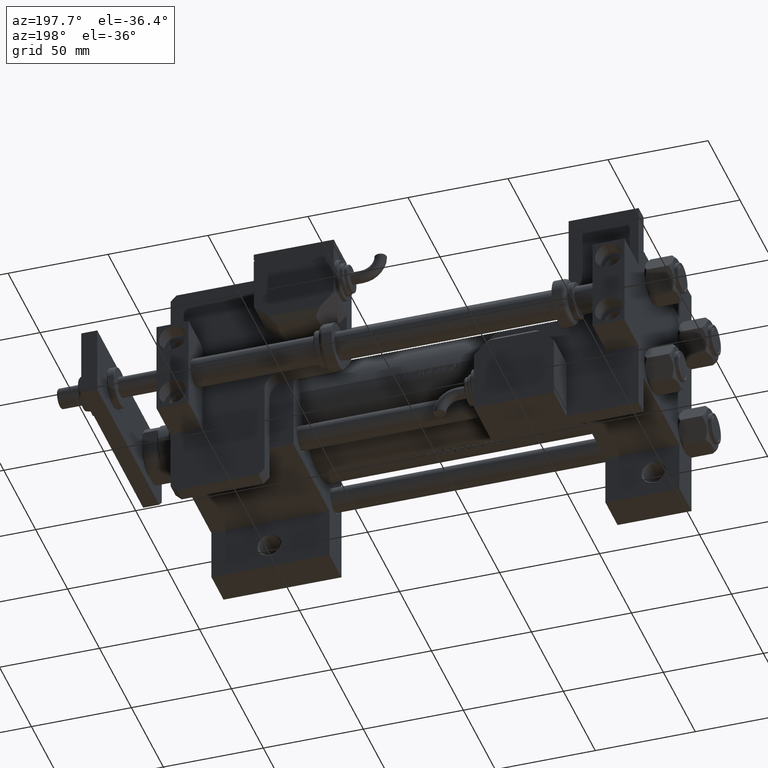
[diagram: clean part render]
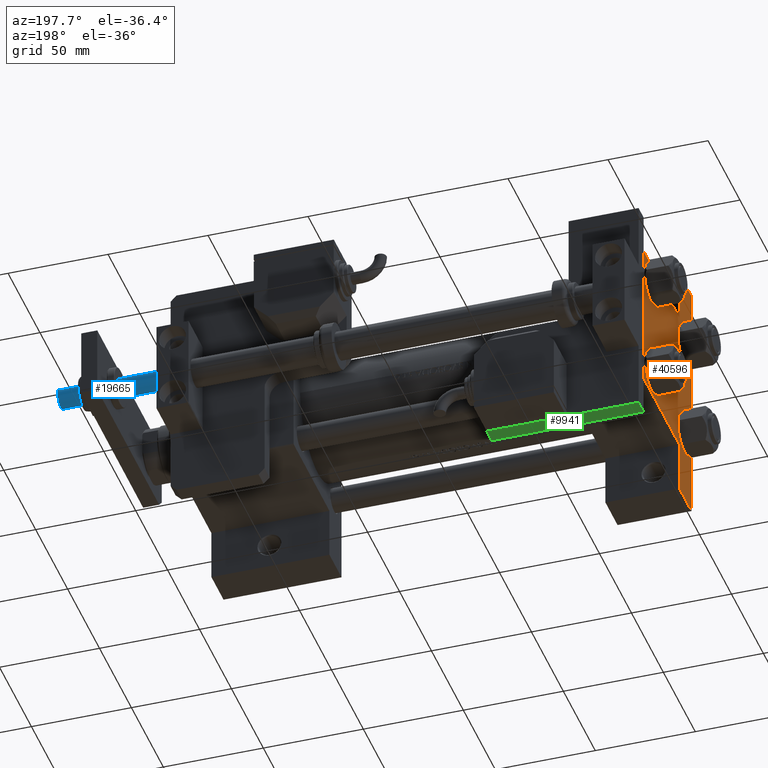
[diagram: same view with three faces highlighted in distinct colors, each labeled with its STEP entity id]
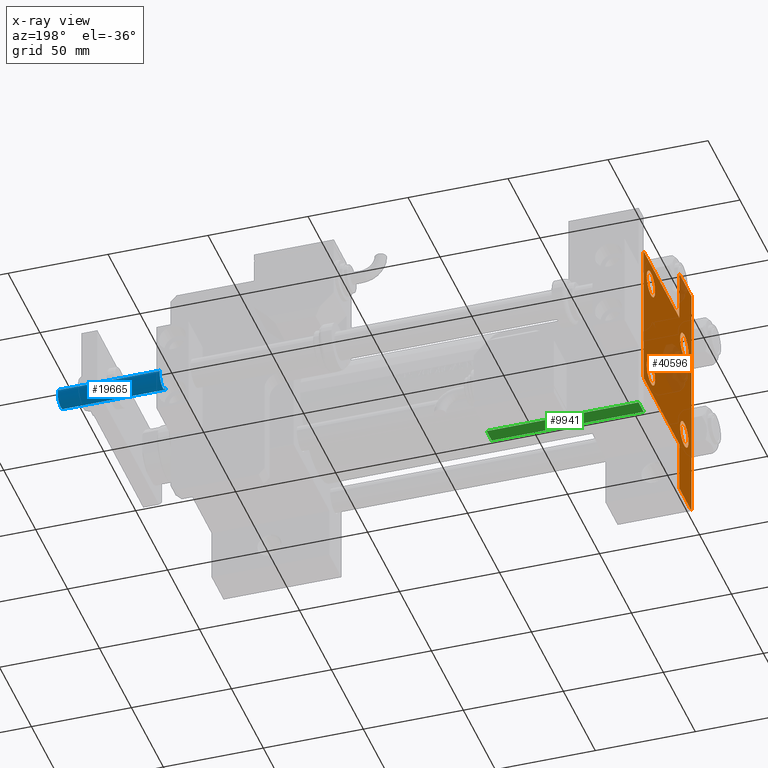
[diagram: x-ray of the same camera — body ghosted, the three highlighted faces saturated]
A machine part, auxiliary view with three faces highlighted in distinct colors.
The next image is the same camera in x-ray (body ghosted, the three faces saturated) — at least one of them is partly hidden behind the body in this view.
Their STEP definitions:

[orange] entity #40596 — the highlighted planar face has unit normal (-1, 0, -0).
#86 = CARTESIAN_POINT ( 'NONE',  ( 0.000000000000000000, 26.14999999999999858, -32.65000000000001990 ) ) ;
#365 = VERTEX_POINT ( 'NONE', #45399 ) ;
#633 = ORIENTED_EDGE ( 'NONE', *, *, #46266, .F. ) ;
#747 = EDGE_CURVE ( 'NONE', #20176, #47620, #23011, .T. ) ;
#1207 = ORIENTED_EDGE ( 'NONE', *, *, #28433, .F. ) ;
#1434 = CARTESIAN_POINT ( 'NONE',  ( 0.000000000000000000, 37.24999999999999289, 37.24999999999999289 ) ) ;
#1969 = CARTESIAN_POINT ( 'NONE',  ( 0.000000000000000000, -63.49999999999998579, 26.72167621838007889 ) ) ;
#2514 = ORIENTED_EDGE ( 'NONE', *, *, #44954, .T. ) ;
#2623 = LINE ( 'NONE', #10457, #48408 ) ;
#2825 = FACE_BOUND ( 'NONE', #8994, .T. ) ;
#3833 = DIRECTION ( 'NONE',  ( 1.000000000000000000, -0.000000000000000000, 0.000000000000000000 ) ) ;
#3903 = CIRCLE ( 'NONE', #10799, 6.500000000000015987 ) ;
#4060 = CARTESIAN_POINT ( 'NONE',  ( 1.561251128379126385E-14, 63.50000000000001421, -18.50000000000000355 ) ) ;
#4231 = CARTESIAN_POINT ( 'NONE',  ( 1.561251128379126385E-14, 63.50000000000001421, 26.72167621838005047 ) ) ;
#4612 = CARTESIAN_POINT ( 'NONE',  ( 0.000000000000000000, -26.14999999999999147, -32.65000000000002700 ) ) ;
#6242 = AXIS2_PLACEMENT_3D ( 'NONE', #17444, #16909, #29563 ) ;
#6280 = VERTEX_POINT ( 'NONE', #86 ) ;
#6923 = LINE ( 'NONE', #39791, #47173 ) ;
#7031 = VERTEX_POINT ( 'NONE', #28796 ) ;
#7073 = EDGE_CURVE ( 'NONE', #47620, #20176, #42027, .T. ) ;
#7141 = EDGE_CURVE ( 'NONE', #36114, #365, #6923, .T. ) ;
#7217 = CIRCLE ( 'NONE', #27008, 6.500000000000015987 ) ;
#7225 = LINE ( 'NONE', #39827, #29385 ) ;
#7306 = CARTESIAN_POINT ( 'NONE',  ( 0.000000000000000000, 26.14999999999999858, -26.15000000000000213 ) ) ;
#7482 = LINE ( 'NONE', #4231, #29785 ) ;
#8159 = DIRECTION ( 'NONE',  ( 0.000000000000000000, 0.000000000000000000, -1.000000000000000000 ) ) ;
#8548 = DIRECTION ( 'NONE',  ( 0.000000000000000000, -1.734723475976806848E-16, -1.000000000000000000 ) ) ;
#8994 = EDGE_LOOP ( 'NONE', ( #41740, #33722 ) ) ;
#9898 = DIRECTION ( 'NONE',  ( 1.000000000000000000, -0.000000000000000000, 0.000000000000000000 ) ) ;
#10083 = LINE ( 'NONE', #1969, #17428 ) ;
#10123 = FACE_BOUND ( 'NONE', #29886, .T. ) ;
#10361 = LINE ( 'NONE', #1434, #17921 ) ;
#10457 = CARTESIAN_POINT ( 'NONE',  ( 0.000000000000000000, 37.49999999999999289, -37.50000000000000000 ) ) ;
#10685 = CARTESIAN_POINT ( 'NONE',  ( 0.000000000000000000, -63.50000000000000000, -37.49999999999999289 ) ) ;
#10799 = AXIS2_PLACEMENT_3D ( 'NONE', #7306, #27812, #40184 ) ;
#10855 = CARTESIAN_POINT ( 'NONE',  ( 0.000000000000000000, -37.00000000000000711, 37.49999999999999289 ) ) ;
#11611 = VERTEX_POINT ( 'NONE', #42362 ) ;
#11851 = ORIENTED_EDGE ( 'NONE', *, *, #15567, .T. ) ;
#11941 = DIRECTION ( 'NONE',  ( 0.000000000000000000, 0.000000000000000000, 1.000000000000000000 ) ) ;
#12536 = DIRECTION ( 'NONE',  ( 1.000000000000000000, -0.000000000000000000, 0.000000000000000000 ) ) ;
#13076 = VECTOR ( 'NONE', #36153, 1000.000000000000000 ) ;
#13161 = CARTESIAN_POINT ( 'NONE',  ( 0.000000000000000000, 36.99999999999999289, 37.50000000000000000 ) ) ;
#13189 = CIRCLE ( 'NONE', #36451, 6.500000000000015987 ) ;
#13710 = ORIENTED_EDGE ( 'NONE', *, *, #7141, .F. ) ;
#14233 = EDGE_CURVE ( 'NONE', #36114, #41941, #7225, .T. ) ;
#14649 = ORIENTED_EDGE ( 'NONE', *, *, #7073, .T. ) ;
#15008 = VERTEX_POINT ( 'NONE', #36641 ) ;
#15430 = CARTESIAN_POINT ( 'NONE',  ( 0.000000000000000000, 37.49999999999999289, 37.50000000000000000 ) ) ;
#15567 = EDGE_CURVE ( 'NONE', #35994, #39771, #36330, .T. ) ;
#15612 = ORIENTED_EDGE ( 'NONE', *, *, #29297, .F. ) ;
#15653 = VERTEX_POINT ( 'NONE', #44613 ) ;
#15688 = LINE ( 'NONE', #15430, #13076 ) ;
#15814 = CARTESIAN_POINT ( 'NONE',  ( 0.000000000000000000, 37.49999999999999289, -18.49999999999999645 ) ) ;
#16738 = DIRECTION ( 'NONE',  ( -1.334402673828314079E-16, -1.000000000000000000, 0.000000000000000000 ) ) ;
#16801 = EDGE_CURVE ( 'NONE', #42740, #7031, #29494, .T. ) ;
#16909 = DIRECTION ( 'NONE',  ( 1.000000000000000000, -0.000000000000000000, 0.000000000000000000 ) ) ;
#17323 = ORIENTED_EDGE ( 'NONE', *, *, #22281, .T. ) ;
#17428 = VECTOR ( 'NONE', #18181, 1000.000000000000000 ) ;
#17444 = CARTESIAN_POINT ( 'NONE',  ( 0.000000000000000000, -26.14999999999999147, 26.15000000000000924 ) ) ;
#17619 = CIRCLE ( 'NONE', #33935, 6.500000000000023093 ) ;
#17921 = VECTOR ( 'NONE', #34334, 1000.000000000000114 ) ;
#18181 = DIRECTION ( 'NONE',  ( 0.000000000000000000, -1.734723475976806848E-16, -1.000000000000000000 ) ) ;
#18297 = DIRECTION ( 'NONE',  ( 0.000000000000000000, 0.000000000000000000, 1.000000000000000000 ) ) ;
#19299 = FACE_BOUND ( 'NONE', #20513, .T. ) ;
#19964 = ORIENTED_EDGE ( 'NONE', *, *, #747, .T. ) ;
#20176 = VERTEX_POINT ( 'NONE', #51310 ) ;
#20345 = AXIS2_PLACEMENT_3D ( 'NONE', #38935, #26583, #31394 ) ;
#20513 = EDGE_LOOP ( 'NONE', ( #19964, #14649 ) ) ;
#20813 = ORIENTED_EDGE ( 'NONE', *, *, #36265, .T. ) ;
#20845 = CARTESIAN_POINT ( 'NONE',  ( 0.000000000000000000, -26.14999999999999147, -19.64999999999999503 ) ) ;
#22281 = EDGE_CURVE ( 'NONE', #15008, #6280, #7217, .T. ) ;
#22330 = DIRECTION ( 'NONE',  ( 1.000000000000000000, -0.000000000000000000, 0.000000000000000000 ) ) ;
#22563 = DIRECTION ( 'NONE',  ( 1.000000000000000000, -0.000000000000000000, 0.000000000000000000 ) ) ;
#23011 = CIRCLE ( 'NONE', #51358, 6.500000000000023093 ) ;
#23459 = EDGE_CURVE ( 'NONE', #43316, #36771, #37516, .T. ) ;
#23670 = DIRECTION ( 'NONE',  ( 0.000000000000000000, -1.000000000000000000, -9.251858538542972814E-17 ) ) ;
#25555 = ORIENTED_EDGE ( 'NONE', *, *, #23459, .T. ) ;
#25602 = VERTEX_POINT ( 'NONE', #10685 ) ;
#25963 = EDGE_CURVE ( 'NONE', #15653, #25602, #10083, .T. ) ;
#25984 = VERTEX_POINT ( 'NONE', #42672 ) ;
#26086 = DIRECTION ( 'NONE',  ( 0.000000000000000000, 0.000000000000000000, 1.000000000000000000 ) ) ;
#26308 = FACE_BOUND ( 'NONE', #49220, .T. ) ;
#26583 = DIRECTION ( 'NONE',  ( -1.000000000000000000, 0.000000000000000000, -0.000000000000000000 ) ) ;
#27008 = AXIS2_PLACEMENT_3D ( 'NONE', #32935, #44794, #11941 ) ;
#27279 = CARTESIAN_POINT ( 'NONE',  ( 0.000000000000000000, -37.50000000000000711, 36.99999999999999289 ) ) ;
#27812 = DIRECTION ( 'NONE',  ( 1.000000000000000000, -0.000000000000000000, 0.000000000000000000 ) ) ;
#28433 = EDGE_CURVE ( 'NONE', #39217, #41941, #15688, .T. ) ;
#28488 = LINE ( 'NONE', #44645, #29466 ) ;
#28638 = CARTESIAN_POINT ( 'NONE',  ( 0.000000000000000000, -26.14999999999999147, -26.15000000000000924 ) ) ;
#28747 = DIRECTION ( 'NONE',  ( -1.334402673828313339E-16, -1.000000000000000000, 0.000000000000000000 ) ) ;
#28796 = CARTESIAN_POINT ( 'NONE',  ( 0.000000000000000000, -26.14999999999999147, 32.65000000000003411 ) ) ;
#28977 = DIRECTION ( 'NONE',  ( 0.000000000000000000, 0.000000000000000000, 1.000000000000000000 ) ) ;
#29297 = EDGE_CURVE ( 'NONE', #365, #15653, #28488, .T. ) ;
#29385 = VECTOR ( 'NONE', #48165, 1000.000000000000114 ) ;
#29466 = VECTOR ( 'NONE', #28747, 1000.000000000000000 ) ;
#29494 = CIRCLE ( 'NONE', #6242, 6.500000000000023093 ) ;
#29563 = DIRECTION ( 'NONE',  ( 0.000000000000000000, 0.000000000000000000, 1.000000000000000000 ) ) ;
#29785 = VECTOR ( 'NONE', #8548, 1000.000000000000000 ) ;
#29886 = EDGE_LOOP ( 'NONE', ( #11851, #32004 ) ) ;
#30325 = FACE_OUTER_BOUND ( 'NONE', #35697, .T. ) ;
#30360 = EDGE_CURVE ( 'NONE', #25984, #25602, #2623, .T. ) ;
#30373 = CARTESIAN_POINT ( 'NONE',  ( 0.000000000000000000, 26.14999999999999858, 19.64999999999998437 ) ) ;
#31394 = DIRECTION ( 'NONE',  ( -0.000000000000000000, 0.000000000000000000, 1.000000000000000000 ) ) ;
#31699 = EDGE_CURVE ( 'NONE', #39771, #35994, #13189, .T. ) ;
#31721 = CARTESIAN_POINT ( 'NONE',  ( 0.000000000000000000, 26.14999999999999858, 26.15000000000000213 ) ) ;
#32004 = ORIENTED_EDGE ( 'NONE', *, *, #31699, .T. ) ;
#32935 = CARTESIAN_POINT ( 'NONE',  ( 0.000000000000000000, 26.14999999999999858, -26.15000000000000213 ) ) ;
#33722 = ORIENTED_EDGE ( 'NONE', *, *, #16801, .T. ) ;
#33794 = ORIENTED_EDGE ( 'NONE', *, *, #25963, .F. ) ;
#33881 = VECTOR ( 'NONE', #8159, 1000.000000000000000 ) ;
#33935 = AXIS2_PLACEMENT_3D ( 'NONE', #34167, #22330, #18297 ) ;
#34167 = CARTESIAN_POINT ( 'NONE',  ( 0.000000000000000000, -26.14999999999999147, 26.15000000000000924 ) ) ;
#34334 = DIRECTION ( 'NONE',  ( 0.000000000000000000, 0.7071067811865474617, -0.7071067811865474617 ) ) ;
#34417 = EDGE_CURVE ( 'NONE', #7031, #42740, #17619, .T. ) ;
#34637 = ORIENTED_EDGE ( 'NONE', *, *, #14233, .T. ) ;
#35174 = PLANE ( 'NONE',  #20345 ) ;
#35697 = EDGE_LOOP ( 'NONE', ( #13710, #34637, #1207, #2514, #25555, #633, #50800, #37179, #33794, #15612 ) ) ;
#35994 = VERTEX_POINT ( 'NONE', #20845 ) ;
#36114 = VERTEX_POINT ( 'NONE', #27279 ) ;
#36153 = DIRECTION ( 'NONE',  ( 0.000000000000000000, -1.000000000000000000, -9.251858538542971581E-17 ) ) ;
#36265 = EDGE_CURVE ( 'NONE', #6280, #15008, #3903, .T. ) ;
#36330 = CIRCLE ( 'NONE', #49196, 6.500000000000015987 ) ;
#36451 = AXIS2_PLACEMENT_3D ( 'NONE', #28638, #3833, #41548 ) ;
#36585 = CARTESIAN_POINT ( 'NONE',  ( 0.000000000000000000, 37.49999999999999289, 37.00000000000000000 ) ) ;
#36641 = CARTESIAN_POINT ( 'NONE',  ( 0.000000000000000000, 26.14999999999999858, -19.64999999999998792 ) ) ;
#36771 = VERTEX_POINT ( 'NONE', #15814 ) ;
#36789 = CARTESIAN_POINT ( 'NONE',  ( 0.000000000000000000, -26.14999999999999147, -26.15000000000000924 ) ) ;
#37179 = ORIENTED_EDGE ( 'NONE', *, *, #30360, .T. ) ;
#37516 = LINE ( 'NONE', #50161, #33881 ) ;
#38935 = CARTESIAN_POINT ( 'NONE',  ( 0.000000000000000000, 0.000000000000000000, 0.000000000000000000 ) ) ;
#39217 = VERTEX_POINT ( 'NONE', #13161 ) ;
#39246 = CARTESIAN_POINT ( 'NONE',  ( 0.000000000000000000, 26.14999999999999858, 26.15000000000000213 ) ) ;
#39771 = VERTEX_POINT ( 'NONE', #4612 ) ;
#39791 = CARTESIAN_POINT ( 'NONE',  ( 0.000000000000000000, -37.50000000000000711, 37.49999999999999289 ) ) ;
#39827 = CARTESIAN_POINT ( 'NONE',  ( -0.000000000000000000, -37.25000000000000000, 37.25000000000000000 ) ) ;
#40184 = DIRECTION ( 'NONE',  ( 0.000000000000000000, 0.000000000000000000, 1.000000000000000000 ) ) ;
#40596 = ADVANCED_FACE ( 'NONE', ( #2825, #10123, #26308, #19299, #30325 ), #35174, .T. ) ;
#40848 = DIRECTION ( 'NONE',  ( 0.000000000000000000, 9.251858538542971581E-17, -1.000000000000000000 ) ) ;
#41346 = EDGE_CURVE ( 'NONE', #11611, #25984, #7482, .T. ) ;
#41548 = DIRECTION ( 'NONE',  ( 0.000000000000000000, 0.000000000000000000, 1.000000000000000000 ) ) ;
#41740 = ORIENTED_EDGE ( 'NONE', *, *, #34417, .T. ) ;
#41774 = LINE ( 'NONE', #4060, #50615 ) ;
#41941 = VERTEX_POINT ( 'NONE', #10855 ) ;
#42027 = CIRCLE ( 'NONE', #48020, 6.500000000000023093 ) ;
#42362 = CARTESIAN_POINT ( 'NONE',  ( 1.561251128379126385E-14, 63.50000000000000000, -18.50000000000000355 ) ) ;
#42672 = CARTESIAN_POINT ( 'NONE',  ( 1.561251128379126385E-14, 63.50000000000000000, -37.50000000000002132 ) ) ;
#42740 = VERTEX_POINT ( 'NONE', #48104 ) ;
#42758 = DIRECTION ( 'NONE',  ( 0.000000000000000000, 0.000000000000000000, 1.000000000000000000 ) ) ;
#43316 = VERTEX_POINT ( 'NONE', #36585 ) ;
#44613 = CARTESIAN_POINT ( 'NONE',  ( 0.000000000000000000, -63.50000000000000000, -18.50000000000000355 ) ) ;
#44645 = CARTESIAN_POINT ( 'NONE',  ( 1.046800244763970530E-30, -63.49999999999998579, -18.50000000000000355 ) ) ;
#44794 = DIRECTION ( 'NONE',  ( 1.000000000000000000, -0.000000000000000000, 0.000000000000000000 ) ) ;
#44954 = EDGE_CURVE ( 'NONE', #39217, #43316, #10361, .T. ) ;
#45399 = CARTESIAN_POINT ( 'NONE',  ( 3.469446951953614978E-15, -37.49999999999999289, -18.50000000000000355 ) ) ;
#46266 = EDGE_CURVE ( 'NONE', #11611, #36771, #41774, .T. ) ;
#47173 = VECTOR ( 'NONE', #40848, 1000.000000000000000 ) ;
#47620 = VERTEX_POINT ( 'NONE', #30373 ) ;
#48020 = AXIS2_PLACEMENT_3D ( 'NONE', #39246, #22563, #26086 ) ;
#48104 = CARTESIAN_POINT ( 'NONE',  ( 0.000000000000000000, -26.14999999999999147, 19.64999999999999147 ) ) ;
#48165 = DIRECTION ( 'NONE',  ( -0.000000000000000000, 0.7071067811865474617, 0.7071067811865474617 ) ) ;
#48408 = VECTOR ( 'NONE', #23670, 1000.000000000000000 ) ;
#49196 = AXIS2_PLACEMENT_3D ( 'NONE', #36789, #12536, #28977 ) ;
#49220 = EDGE_LOOP ( 'NONE', ( #17323, #20813 ) ) ;
#50161 = CARTESIAN_POINT ( 'NONE',  ( 0.000000000000000000, 37.49999999999999289, 37.50000000000000000 ) ) ;
#50615 = VECTOR ( 'NONE', #16738, 1000.000000000000000 ) ;
#50800 = ORIENTED_EDGE ( 'NONE', *, *, #41346, .T. ) ;
#51310 = CARTESIAN_POINT ( 'NONE',  ( 0.000000000000000000, 26.14999999999999858, 32.65000000000002700 ) ) ;
#51358 = AXIS2_PLACEMENT_3D ( 'NONE', #31721, #9898, #42758 ) ;

[blue] entity #19665 — the highlighted cylindrical surface (edge-blend (fillet) strip) has radius 5 mm, axis along (-1, 0, 0).
#899 = VERTEX_POINT ( 'NONE', #29782 ) ;
#2087 = CARTESIAN_POINT ( 'NONE',  ( 0.000000000000000000, 0.000000000000000000, -50.99999999999998579 ) ) ;
#2305 = ORIENTED_EDGE ( 'NONE', *, *, #7600, .T. ) ;
#2669 = CARTESIAN_POINT ( 'NONE',  ( -5.000000000000000000, 6.123233995736766282E-16, -51.50000000000000000 ) ) ;
#3296 = VECTOR ( 'NONE', #51977, 1000.000000000000000 ) ;
#5270 = CIRCLE ( 'NONE', #27697, 5.000000000000000000 ) ;
#7005 = ORIENTED_EDGE ( 'NONE', *, *, #21209, .F. ) ;
#7411 = DIRECTION ( 'NONE',  ( -0.000000000000000000, -0.000000000000000000, 1.000000000000000000 ) ) ;
#7600 = EDGE_CURVE ( 'NONE', #46246, #18842, #39589, .T. ) ;
#8645 = CARTESIAN_POINT ( 'NONE',  ( -5.000000000000000000, 6.123233995736766282E-16, -50.99999999999998579 ) ) ;
#13163 = CARTESIAN_POINT ( 'NONE',  ( 0.000000000000000000, 0.000000000000000000, -51.50000000000000000 ) ) ;
#14257 = EDGE_CURVE ( 'NONE', #15404, #46246, #5270, .T. ) ;
#15404 = VERTEX_POINT ( 'NONE', #21495 ) ;
#18532 = CARTESIAN_POINT ( 'NONE',  ( -5.000000000000000000, 6.123233995736766282E-16, 0.000000000000000000 ) ) ;
#18842 = VERTEX_POINT ( 'NONE', #18532 ) ;
#19392 = EDGE_LOOP ( 'NONE', ( #39424, #2305, #52488, #7005 ) ) ;
#19665 = ADVANCED_FACE ( 'NONE', ( #37683 ), #33626, .T. ) ;
#21209 = EDGE_CURVE ( 'NONE', #15404, #899, #52126, .T. ) ;
#21495 = CARTESIAN_POINT ( 'NONE',  ( 5.000000000000000000, 0.000000000000000000, -50.99999999999998579 ) ) ;
#23857 = AXIS2_PLACEMENT_3D ( 'NONE', #52327, #39946, #31058 ) ;
#24746 = CIRCLE ( 'NONE', #23857, 5.000000000000000000 ) ;
#26888 = AXIS2_PLACEMENT_3D ( 'NONE', #13163, #49266, #46016 ) ;
#27190 = DIRECTION ( 'NONE',  ( -1.000000000000000000, 0.000000000000000000, 0.000000000000000000 ) ) ;
#27697 = AXIS2_PLACEMENT_3D ( 'NONE', #2087, #43868, #27190 ) ;
#29525 = VECTOR ( 'NONE', #7411, 1000.000000000000000 ) ;
#29782 = CARTESIAN_POINT ( 'NONE',  ( 5.000000000000000000, 0.000000000000000000, 0.000000000000000000 ) ) ;
#31058 = DIRECTION ( 'NONE',  ( -1.000000000000000000, 0.000000000000000000, 0.000000000000000000 ) ) ;
#33626 = CYLINDRICAL_SURFACE ( 'NONE', #26888, 5.000000000000000000 ) ;
#37683 = FACE_OUTER_BOUND ( 'NONE', #19392, .T. ) ;
#39424 = ORIENTED_EDGE ( 'NONE', *, *, #14257, .T. ) ;
#39589 = LINE ( 'NONE', #2669, #3296 ) ;
#39706 = EDGE_CURVE ( 'NONE', #18842, #899, #24746, .T. ) ;
#39946 = DIRECTION ( 'NONE',  ( 0.000000000000000000, 0.000000000000000000, -1.000000000000000000 ) ) ;
#40284 = CARTESIAN_POINT ( 'NONE',  ( 5.000000000000000000, 0.000000000000000000, -51.50000000000000000 ) ) ;
#43868 = DIRECTION ( 'NONE',  ( 0.000000000000000000, 0.000000000000000000, 1.000000000000000000 ) ) ;
#46016 = DIRECTION ( 'NONE',  ( 1.000000000000000000, 0.000000000000000000, 0.000000000000000000 ) ) ;
#46246 = VERTEX_POINT ( 'NONE', #8645 ) ;
#49266 = DIRECTION ( 'NONE',  ( -0.000000000000000000, -0.000000000000000000, 1.000000000000000000 ) ) ;
#51977 = DIRECTION ( 'NONE',  ( -0.000000000000000000, -0.000000000000000000, 1.000000000000000000 ) ) ;
#52126 = LINE ( 'NONE', #40284, #29525 ) ;
#52327 = CARTESIAN_POINT ( 'NONE',  ( 0.000000000000000000, 0.000000000000000000, 0.000000000000000000 ) ) ;
#52488 = ORIENTED_EDGE ( 'NONE', *, *, #39706, .T. ) ;

[green] entity #9941 — the highlighted planar face has unit normal (0, -0, 1).
#198 = ORIENTED_EDGE ( 'NONE', *, *, #7511, .F. ) ;
#1358 = VERTEX_POINT ( 'NONE', #4867 ) ;
#3759 = LINE ( 'NONE', #45248, #25512 ) ;
#4867 = CARTESIAN_POINT ( 'NONE',  ( -76.00000000000004263, 0.000000000000000000, 0.000000000000000000 ) ) ;
#5297 = DIRECTION ( 'NONE',  ( 0.000000000000000000, 1.000000000000000000, 0.000000000000000000 ) ) ;
#7025 = ORIENTED_EDGE ( 'NONE', *, *, #8612, .T. ) ;
#7511 = EDGE_CURVE ( 'NONE', #16832, #19595, #52243, .T. ) ;
#8610 = DIRECTION ( 'NONE',  ( -0.000000000000000000, -0.000000000000000000, -1.000000000000000000 ) ) ;
#8612 = EDGE_CURVE ( 'NONE', #1358, #19595, #32839, .T. ) ;
#9941 = ADVANCED_FACE ( 'NONE', ( #38179 ), #38976, .F. ) ;
#13435 = EDGE_LOOP ( 'NONE', ( #7025, #198, #15787, #50406 ) ) ;
#14566 = AXIS2_PLACEMENT_3D ( 'NONE', #47053, #5297, #46264 ) ;
#15787 = ORIENTED_EDGE ( 'NONE', *, *, #37126, .F. ) ;
#16832 = VERTEX_POINT ( 'NONE', #24748 ) ;
#19595 = VERTEX_POINT ( 'NONE', #41456 ) ;
#22887 = VECTOR ( 'NONE', #46730, 1000.000000000000000 ) ;
#24748 = CARTESIAN_POINT ( 'NONE',  ( 0.000000000000000000, 0.000000000000000000, 8.000000000000000000 ) ) ;
#25512 = VECTOR ( 'NONE', #8610, 1000.000000000000000 ) ;
#26822 = LINE ( 'NONE', #30843, #22887 ) ;
#29523 = CARTESIAN_POINT ( 'NONE',  ( -76.00000000000004263, 0.000000000000000000, 8.000000000000000000 ) ) ;
#30843 = CARTESIAN_POINT ( 'NONE',  ( -76.00000000000004263, 0.000000000000000000, 8.000000000000000000 ) ) ;
#30978 = CARTESIAN_POINT ( 'NONE',  ( 0.000000000000000000, 0.000000000000000000, 8.000000000000000000 ) ) ;
#32839 = LINE ( 'NONE', #49004, #53241 ) ;
#37126 = EDGE_CURVE ( 'NONE', #50592, #16832, #26822, .T. ) ;
#38179 = FACE_OUTER_BOUND ( 'NONE', #13435, .T. ) ;
#38976 = PLANE ( 'NONE',  #14566 ) ;
#41156 = EDGE_CURVE ( 'NONE', #50592, #1358, #3759, .T. ) ;
#41456 = CARTESIAN_POINT ( 'NONE',  ( 0.000000000000000000, 0.000000000000000000, 0.000000000000000000 ) ) ;
#43100 = DIRECTION ( 'NONE',  ( -0.000000000000000000, -0.000000000000000000, -1.000000000000000000 ) ) ;
#44616 = VECTOR ( 'NONE', #43100, 1000.000000000000000 ) ;
#45248 = CARTESIAN_POINT ( 'NONE',  ( -76.00000000000004263, 0.000000000000000000, 8.000000000000000000 ) ) ;
#46264 = DIRECTION ( 'NONE',  ( 0.000000000000000000, -0.000000000000000000, 1.000000000000000000 ) ) ;
#46730 = DIRECTION ( 'NONE',  ( 1.000000000000000000, 0.000000000000000000, 0.000000000000000000 ) ) ;
#47053 = CARTESIAN_POINT ( 'NONE',  ( -76.00000000000004263, 0.000000000000000000, 8.000000000000000000 ) ) ;
#49004 = CARTESIAN_POINT ( 'NONE',  ( -76.00000000000004263, 0.000000000000000000, 0.000000000000000000 ) ) ;
#49265 = DIRECTION ( 'NONE',  ( 1.000000000000000000, 0.000000000000000000, 0.000000000000000000 ) ) ;
#50406 = ORIENTED_EDGE ( 'NONE', *, *, #41156, .T. ) ;
#50592 = VERTEX_POINT ( 'NONE', #29523 ) ;
#52243 = LINE ( 'NONE', #30978, #44616 ) ;
#53241 = VECTOR ( 'NONE', #49265, 1000.000000000000000 ) ;